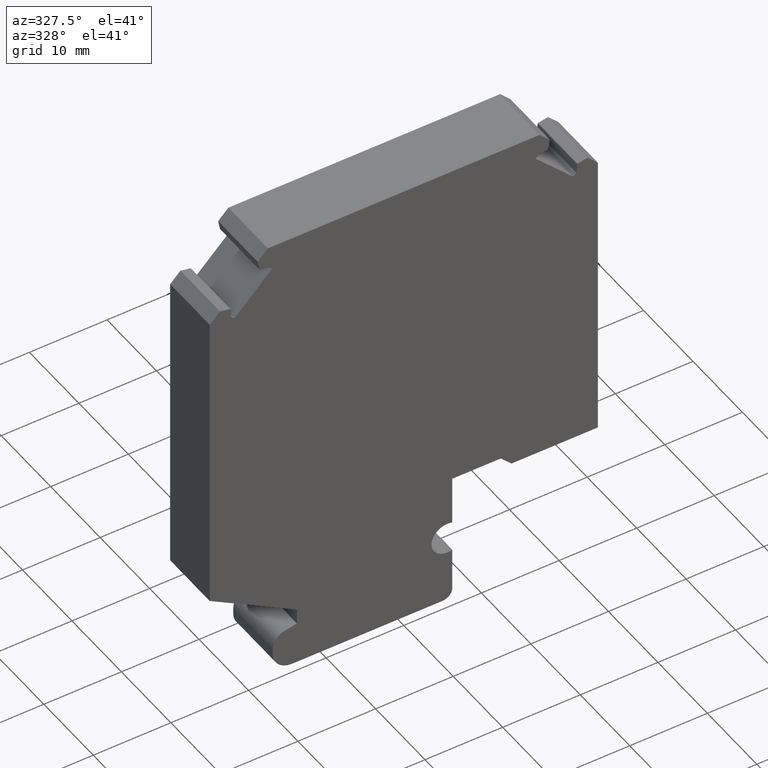
[diagram: clean part render]
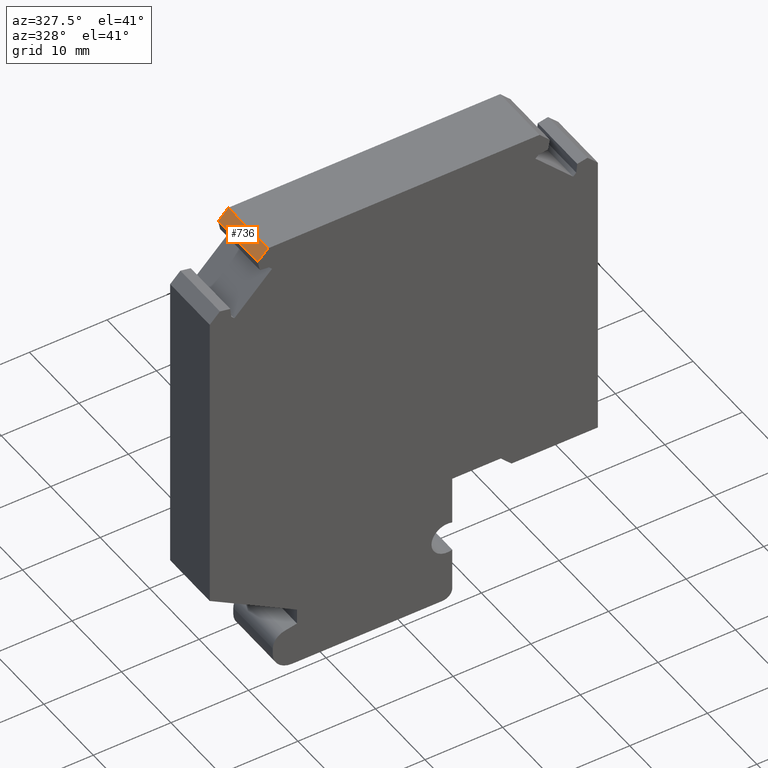
[diagram: same view with one face highlighted and labeled with its STEP entity id]
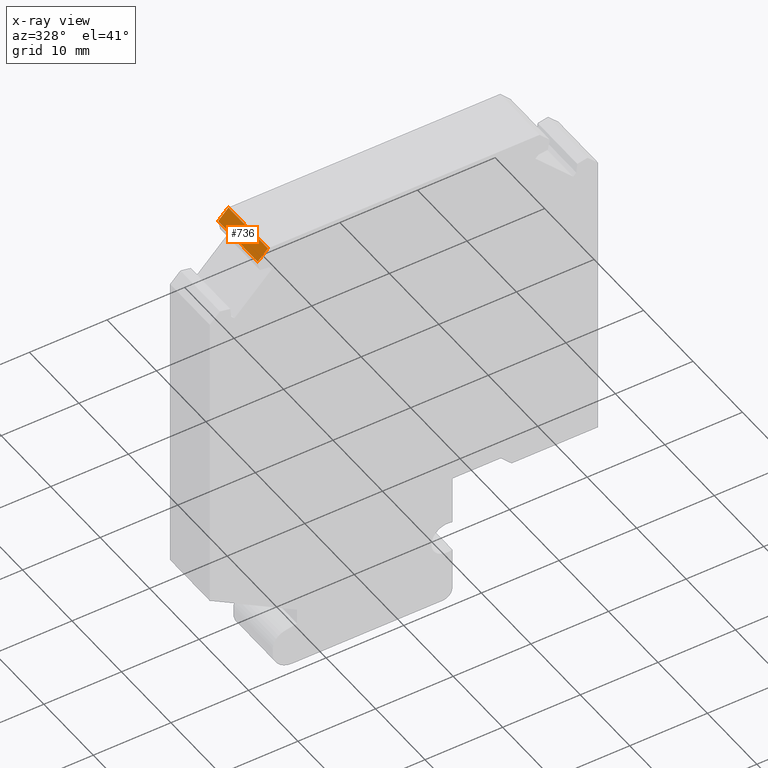
[diagram: x-ray of the same camera — body ghosted, the highlighted face saturated]
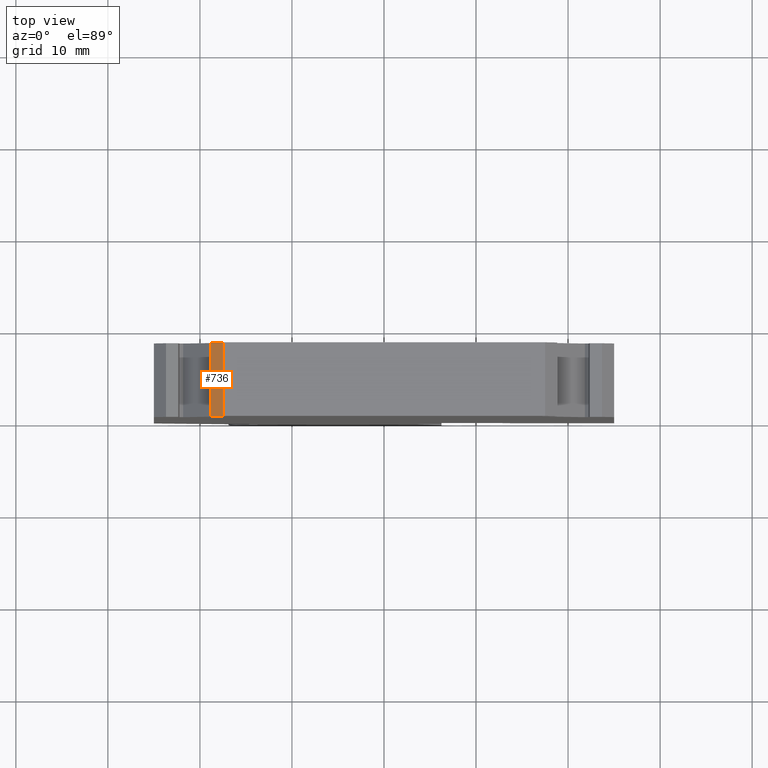
[diagram: same view with one face highlighted and labeled with its STEP entity id]
A machine part, auxiliary view. The second image highlights one B-rep face of the part: STEP entity #736.
The next image is the same camera in x-ray: the body ghosted, the highlighted face saturated — about 0% of this face is hidden behind the body in this view.
A second angle (top view) of the same face is appended — the face is thin or edge-on in the first view.
In plain terms, the highlighted planar face has unit normal (0.7071, 0, -0.7071).
Its self-contained STEP definition (entity closure, byte-faithful):
#35=ORIENTED_EDGE('',*,*,#251,.T.);
#36=ORIENTED_EDGE('',*,*,#252,.F.);
#37=ORIENTED_EDGE('',*,*,#253,.F.);
#38=ORIENTED_EDGE('',*,*,#254,.T.);
#251=EDGE_CURVE('',#359,#360,#431,.T.);
#252=EDGE_CURVE('',#361,#360,#432,.T.);
#253=EDGE_CURVE('',#362,#361,#433,.T.);
#254=EDGE_CURVE('',#362,#359,#434,.T.);
#359=VERTEX_POINT('',#1034);
#360=VERTEX_POINT('',#1035);
#361=VERTEX_POINT('',#1037);
#362=VERTEX_POINT('',#1039);
#431=LINE('',#1033,#529);
#432=LINE('',#1036,#530);
#433=LINE('',#1038,#531);
#434=LINE('',#1040,#532);
#529=VECTOR('',#839,1000.);
#530=VECTOR('',#840,1000.);
#531=VECTOR('',#841,1000.);
#532=VECTOR('',#842,1000.);
#627=EDGE_LOOP('',(#35,#36,#37,#38));
#665=FACE_BOUND('',#627,.T.);
#703=PLANE('',#787);
#736=ADVANCED_FACE('',(#665),#703,.F.);
#787=AXIS2_PLACEMENT_3D('',#1032,#837,#838);
#837=DIRECTION('',(0.707106781186558,0.,-0.707106781186537));
#838=DIRECTION('',(-0.707106781186537,0.,-0.707106781186558));
#839=DIRECTION('',(0.707106781186537,0.,0.707106781186558));
#840=DIRECTION('',(0.,-1.,0.));
#841=DIRECTION('',(0.707106781186537,0.,0.707106781186558));
#842=DIRECTION('',(0.,-1.,0.));
#1032=CARTESIAN_POINT('',(-18.8193204396714,8.,28.3029805871675));
#1033=CARTESIAN_POINT('',(-18.8193204396714,0.,28.3029805871675));
#1034=CARTESIAN_POINT('',(-18.8193204396714,0.,28.3029805871675));
#1035=CARTESIAN_POINT('',(-17.5000000000001,0.,29.6223010268388));
#1036=CARTESIAN_POINT('',(-17.5000000000001,8.,29.6223010268388));
#1037=CARTESIAN_POINT('',(-17.5000000000001,8.,29.6223010268388));
#1038=CARTESIAN_POINT('',(-18.8193204396714,8.,28.3029805871675));
#1039=CARTESIAN_POINT('',(-18.8193204396714,8.,28.3029805871675));
#1040=CARTESIAN_POINT('',(-18.8193204396714,8.,28.3029805871675));